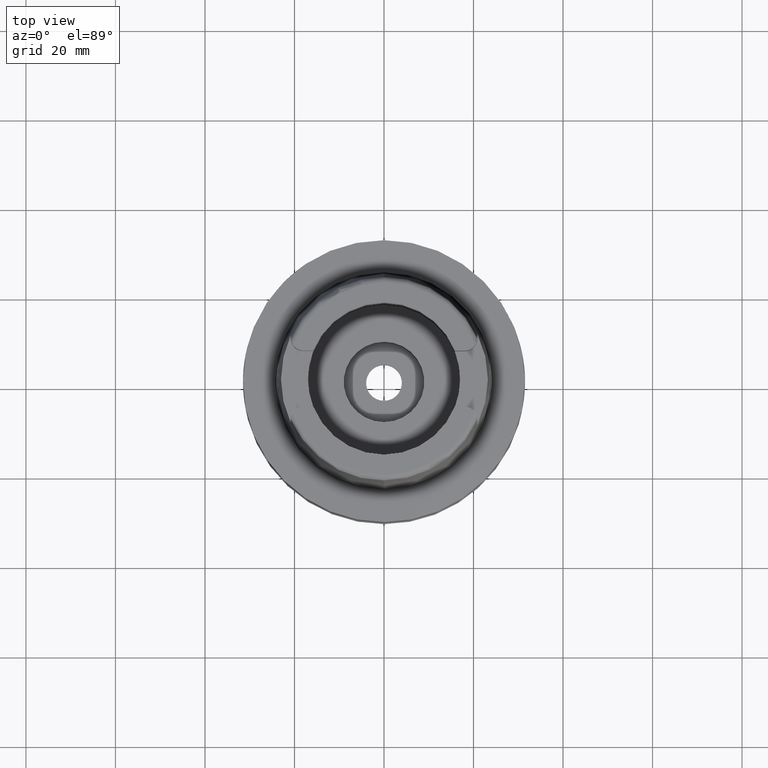
[diagram: clean part render]
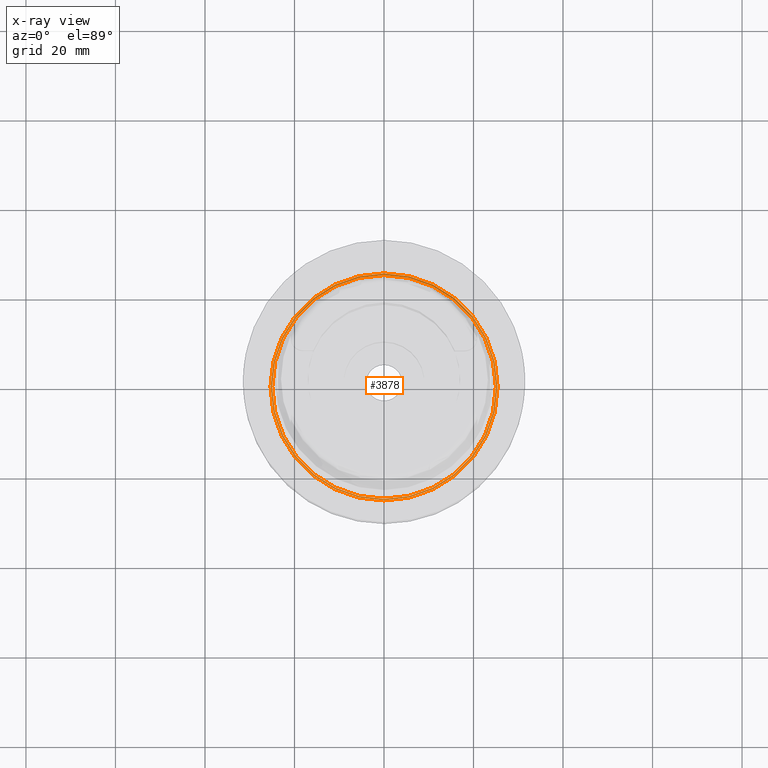
[diagram: x-ray — body ghosted, one internal face saturated and labeled with its STEP entity id]
A machine part, top view, then the same camera in x-ray: the body is ghosted and one INTERNAL B-rep face — a face not visible from any outside direction — is saturated and labeled: STEP entity #3878.
In plain terms, the highlighted planar face has unit normal (0, 0, 1).
Its self-contained STEP definition (entity closure, byte-faithful):
#1751=CARTESIAN_POINT('',(0.E0,0.E0,-7.59E1));
#1752=DIRECTION('',(0.E0,0.E0,1.E0));
#1753=DIRECTION('',(0.E0,-1.E0,0.E0));
#1754=AXIS2_PLACEMENT_3D('',#1751,#1752,#1753);
#1759=CARTESIAN_POINT('',(0.E0,0.E0,-7.59E1));
#1760=DIRECTION('',(0.E0,0.E0,1.E0));
#1761=DIRECTION('',(0.E0,1.E0,0.E0));
#1762=AXIS2_PLACEMENT_3D('',#1759,#1760,#1761);
#1767=CARTESIAN_POINT('',(0.E0,0.E0,-7.59E1));
#1768=DIRECTION('',(0.E0,0.E0,-1.E0));
#1769=DIRECTION('',(0.E0,-1.E0,0.E0));
#1770=AXIS2_PLACEMENT_3D('',#1767,#1768,#1769);
#1775=CARTESIAN_POINT('',(0.E0,0.E0,-7.59E1));
#1776=DIRECTION('',(0.E0,0.E0,-1.E0));
#1777=DIRECTION('',(0.E0,1.E0,0.E0));
#1778=AXIS2_PLACEMENT_3D('',#1775,#1776,#1777);
#2498=CARTESIAN_POINT('',(0.E0,2.5E1,-7.59E1));
#2499=VERTEX_POINT('',#2498);
#2500=CARTESIAN_POINT('',(0.E0,-2.5E1,-7.59E1));
#2501=VERTEX_POINT('',#2500);
#2502=CARTESIAN_POINT('',(0.E0,-2.535E1,-7.59E1));
#2503=CARTESIAN_POINT('',(0.E0,2.535E1,-7.59E1));
#2504=VERTEX_POINT('',#2502);
#2505=VERTEX_POINT('',#2503);
#3863=CARTESIAN_POINT('',(0.E0,0.E0,-7.59E1));
#3864=DIRECTION('',(0.E0,0.E0,1.E0));
#3865=DIRECTION('',(0.E0,1.E0,0.E0));
#3866=AXIS2_PLACEMENT_3D('',#3863,#3864,#3865);
#3867=PLANE('',#3866);
#3868=ORIENTED_EDGE('',*,*,#3856,.T.);
#3869=ORIENTED_EDGE('',*,*,#3845,.T.);
#3870=EDGE_LOOP('',(#3868,#3869));
#3871=FACE_OUTER_BOUND('',#3870,.F.);
#3873=ORIENTED_EDGE('',*,*,#3872,.T.);
#3875=ORIENTED_EDGE('',*,*,#3874,.T.);
#3876=EDGE_LOOP('',(#3873,#3875));
#3877=FACE_BOUND('',#3876,.F.);
#1755=CIRCLE('',#1754,2.535E1);
#1763=CIRCLE('',#1762,2.535E1);
#1771=CIRCLE('',#1770,2.5E1);
#1779=CIRCLE('',#1778,2.5E1);
#3845=EDGE_CURVE('',#2505,#2504,#1763,.T.);
#3856=EDGE_CURVE('',#2504,#2505,#1755,.T.);
#3872=EDGE_CURVE('',#2501,#2499,#1771,.T.);
#3874=EDGE_CURVE('',#2499,#2501,#1779,.T.);
#3878=ADVANCED_FACE('',(#3871,#3877),#3867,.F.);